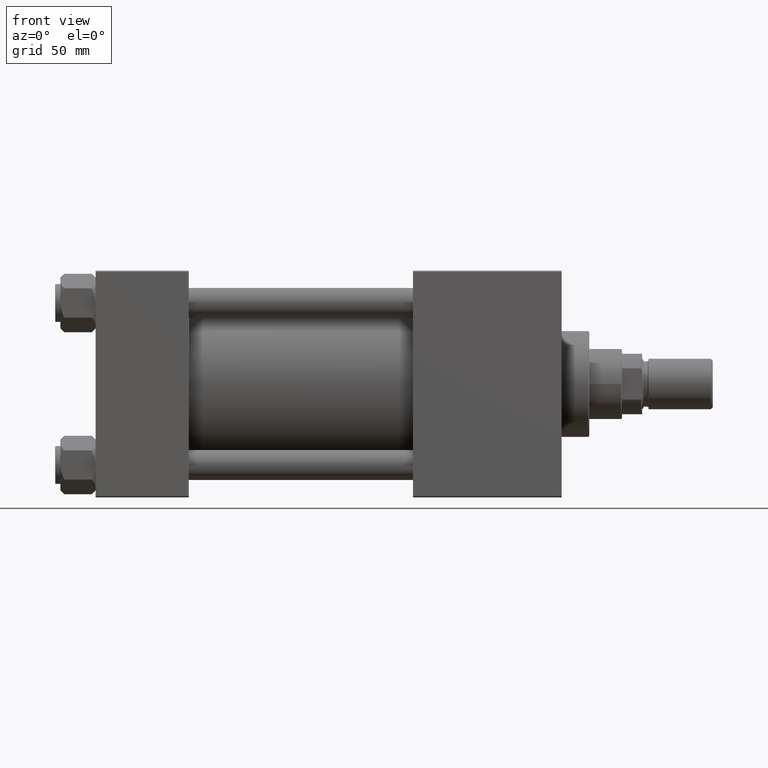
[diagram: clean part render]
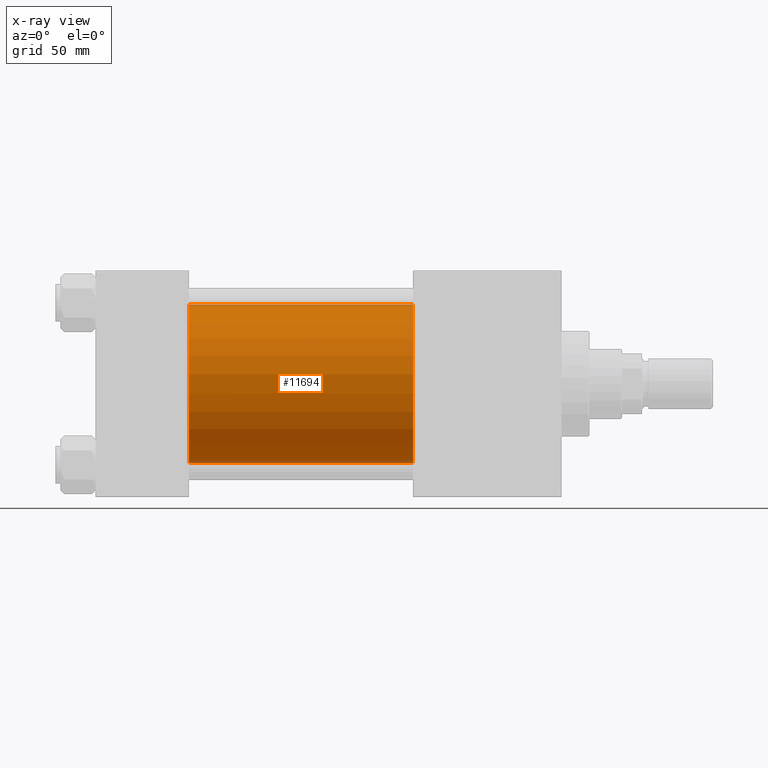
[diagram: x-ray — body ghosted, one internal face saturated and labeled with its STEP entity id]
A machine part, front view, then the same camera in x-ray: the body is ghosted and one INTERNAL B-rep face — a face not visible from any outside direction — is saturated and labeled: STEP entity #11694.
In plain terms, the highlighted cylindrical surface (partial cylindrical patch) has radius 31.5 mm, axis along (-1, -0, -0).
Its self-contained STEP definition (entity closure, byte-faithful):
#626 = CIRCLE ( 'NONE', #35930, 31.50000000000000000 ) ;
#1466 = CARTESIAN_POINT ( 'NONE',  ( 126.0000000000000000, -2.602085213965210642E-15, 31.50000000000000000 ) ) ;
#2362 = ORIENTED_EDGE ( 'NONE', *, *, #24133, .F. ) ;
#3090 = CARTESIAN_POINT ( 'NONE',  ( 37.00000000000000000, 1.255552203348951850E-15, -31.50000000000000000 ) ) ;
#5815 = AXIS2_PLACEMENT_3D ( 'NONE', #46200, #46696, #14320 ) ;
#6316 = FACE_OUTER_BOUND ( 'NONE', #35315, .T. ) ;
#7815 = LINE ( 'NONE', #8813, #46144 ) ;
#8813 = CARTESIAN_POINT ( 'NONE',  ( 126.0000000000000000, -2.602085213965210642E-15, 31.50000000000000000 ) ) ;
#10416 = DIRECTION ( 'NONE',  ( 0.000000000000000000, 0.000000000000000000, 1.000000000000000000 ) ) ;
#11694 = ADVANCED_FACE ( 'NONE', ( #6316 ), #22019, .F. ) ;
#14320 = DIRECTION ( 'NONE',  ( 0.000000000000000000, 0.000000000000000000, -1.000000000000000000 ) ) ;
#17092 = VERTEX_POINT ( 'NONE', #3090 ) ;
#18162 = VERTEX_POINT ( 'NONE', #41126 ) ;
#18372 = EDGE_CURVE ( 'NONE', #45580, #17092, #41623, .T. ) ;
#21093 = DIRECTION ( 'NONE',  ( 1.000000000000000000, 0.000000000000000000, 0.000000000000000000 ) ) ;
#22019 = CYLINDRICAL_SURFACE ( 'NONE', #24875, 31.50000000000000000 ) ;
#22584 = CARTESIAN_POINT ( 'NONE',  ( 126.0000000000000000, 1.255552203348951850E-15, -31.50000000000000000 ) ) ;
#24133 = EDGE_CURVE ( 'NONE', #18162, #17092, #626, .T. ) ;
#24875 = AXIS2_PLACEMENT_3D ( 'NONE', #37690, #29990, #10416 ) ;
#26184 = DIRECTION ( 'NONE',  ( -1.000000000000000000, -0.000000000000000000, -0.000000000000000000 ) ) ;
#28903 = DIRECTION ( 'NONE',  ( -1.000000000000000000, -0.000000000000000000, -0.000000000000000000 ) ) ;
#29405 = CARTESIAN_POINT ( 'NONE',  ( 126.0000000000000000, 1.255552203348951850E-15, -31.50000000000000000 ) ) ;
#29990 = DIRECTION ( 'NONE',  ( -1.000000000000000000, -0.000000000000000000, -0.000000000000000000 ) ) ;
#35315 = EDGE_LOOP ( 'NONE', ( #35615, #40214, #2362, #39181 ) ) ;
#35615 = ORIENTED_EDGE ( 'NONE', *, *, #48589, .T. ) ;
#35930 = AXIS2_PLACEMENT_3D ( 'NONE', #49118, #21093, #40126 ) ;
#37381 = VECTOR ( 'NONE', #26184, 1000.000000000000000 ) ;
#37690 = CARTESIAN_POINT ( 'NONE',  ( 126.0000000000000000, -2.602085213965210642E-15, 0.000000000000000000 ) ) ;
#37809 = EDGE_CURVE ( 'NONE', #41293, #18162, #7815, .T. ) ;
#39181 = ORIENTED_EDGE ( 'NONE', *, *, #37809, .F. ) ;
#39507 = CIRCLE ( 'NONE', #5815, 31.50000000000000000 ) ;
#40126 = DIRECTION ( 'NONE',  ( 0.000000000000000000, 0.000000000000000000, -1.000000000000000000 ) ) ;
#40214 = ORIENTED_EDGE ( 'NONE', *, *, #18372, .T. ) ;
#41126 = CARTESIAN_POINT ( 'NONE',  ( 37.00000000000000000, -2.602085213965210642E-15, 31.50000000000000000 ) ) ;
#41293 = VERTEX_POINT ( 'NONE', #1466 ) ;
#41623 = LINE ( 'NONE', #22584, #37381 ) ;
#45580 = VERTEX_POINT ( 'NONE', #29405 ) ;
#46144 = VECTOR ( 'NONE', #28903, 1000.000000000000000 ) ;
#46200 = CARTESIAN_POINT ( 'NONE',  ( 126.0000000000000000, -2.602085213965210642E-15, 0.000000000000000000 ) ) ;
#46696 = DIRECTION ( 'NONE',  ( 1.000000000000000000, 0.000000000000000000, 0.000000000000000000 ) ) ;
#48589 = EDGE_CURVE ( 'NONE', #41293, #45580, #39507, .T. ) ;
#49118 = CARTESIAN_POINT ( 'NONE',  ( 37.00000000000000000, -2.602085213965210642E-15, 0.000000000000000000 ) ) ;